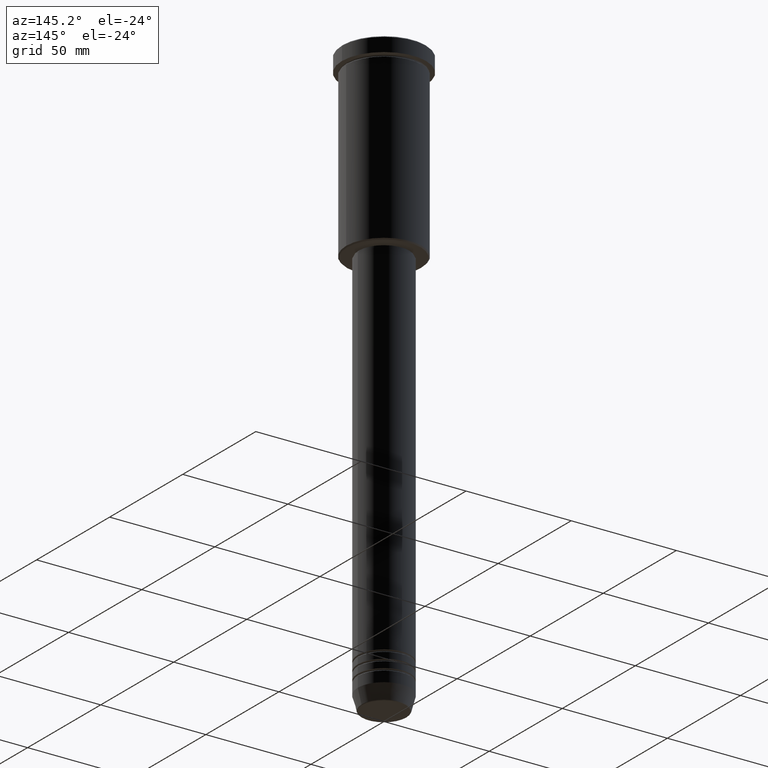
[diagram: clean part render]
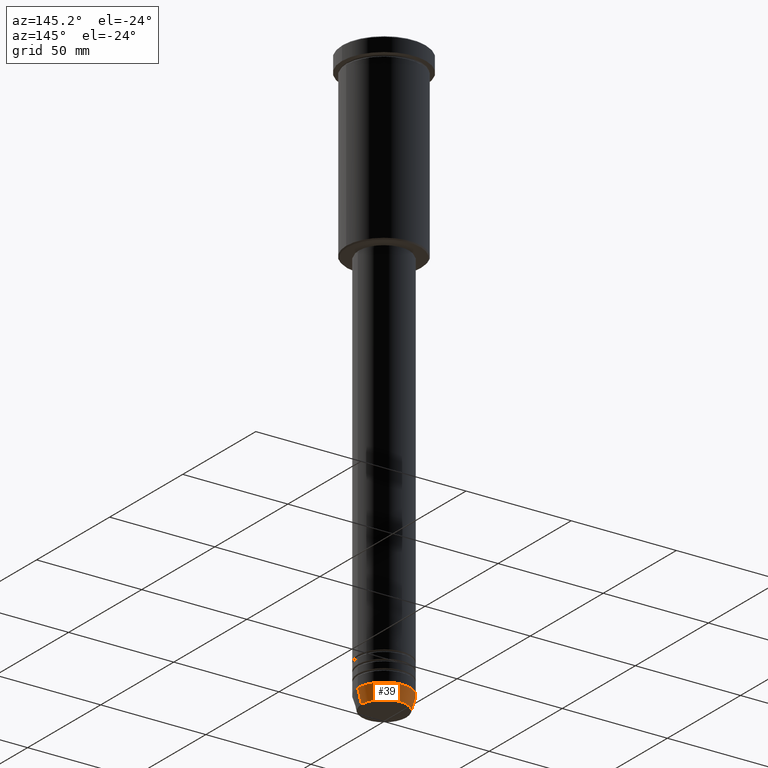
[diagram: same view with one face highlighted and labeled with its STEP entity id]
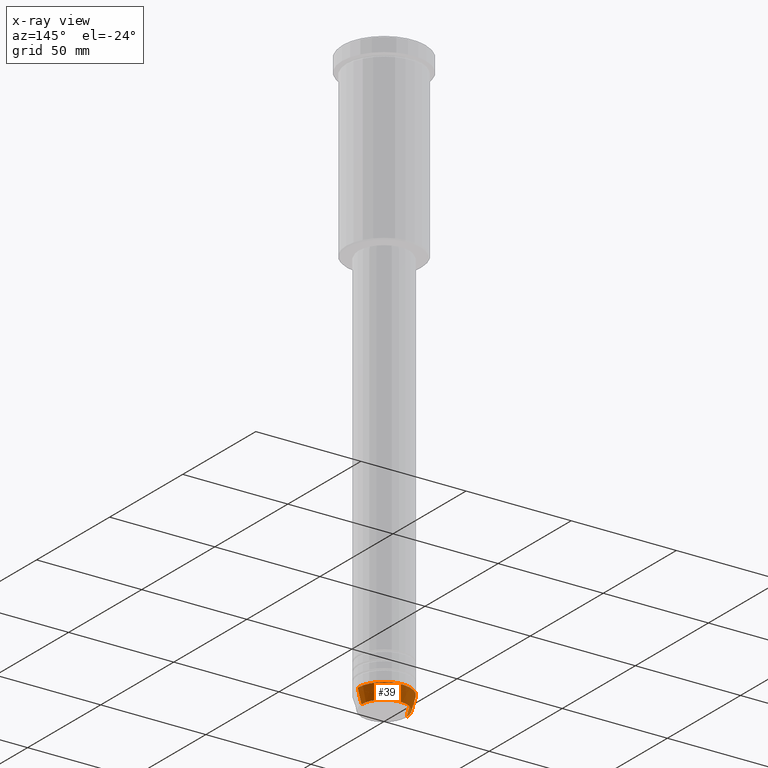
[diagram: x-ray of the same camera — body ghosted, the highlighted face saturated]
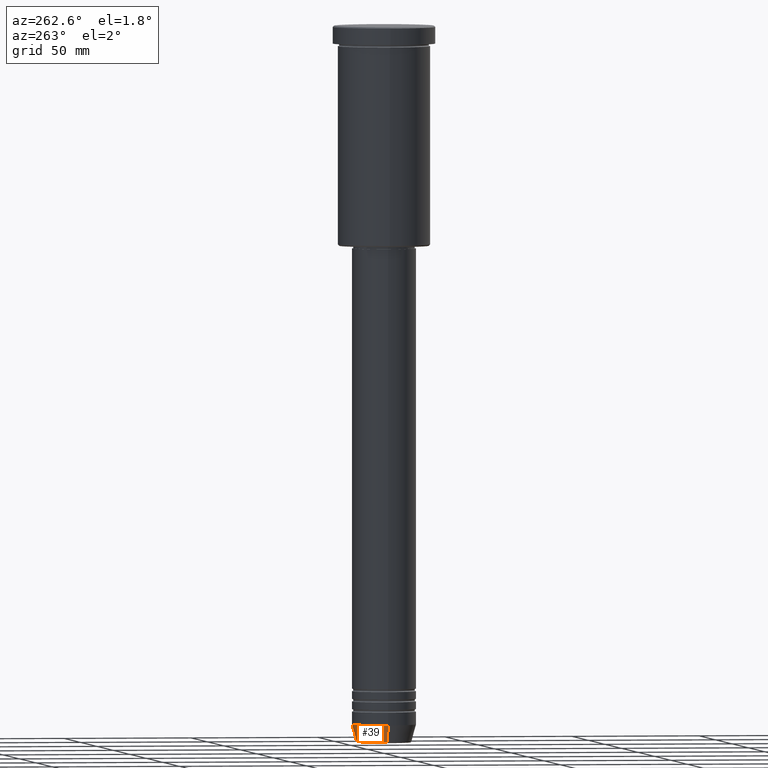
[diagram: same view with one face highlighted and labeled with its STEP entity id]
A machine part, auxiliary view. The second image highlights one B-rep face of the part: STEP entity #39.
The next image is the same camera in x-ray: the body ghosted, the highlighted face saturated — about 0% of this face is hidden behind the body in this view.
A second angle (auxiliary view) of the same face is appended — the face is thin or edge-on in the first view.
In plain terms, the highlighted conical surface has half-angle 15 deg.
Its self-contained STEP definition (entity closure, byte-faithful):
#39 = ADVANCED_FACE ( 'NONE', ( #968 ), #108, .T. ) ;
#104 = DIRECTION ( 'NONE',  ( -0.2588190451025213501, 3.169619151431772337E-17, 0.9659258262890680902 ) ) ;
#108 = CONICAL_SURFACE ( 'NONE', #618, 12.50000000000000000, 0.2617993877991500740 ) ;
#122 = LINE ( 'NONE', #929, #478 ) ;
#127 = VERTEX_POINT ( 'NONE', #904 ) ;
#134 = CARTESIAN_POINT ( 'NONE',  ( -10.72365507213719127, 1.422038742429750516E-15, -279.6294095225512706 ) ) ;
#138 = ORIENTED_EDGE ( 'NONE', *, *, #576, .T. ) ;
#176 = CARTESIAN_POINT ( 'NONE',  ( 0.000000000000000000, 0.000000000000000000, -273.0000000000000000 ) ) ;
#182 = ORIENTED_EDGE ( 'NONE', *, *, #751, .F. ) ;
#190 = DIRECTION ( 'NONE',  ( 1.000000000000000000, 0.000000000000000000, 0.000000000000000000 ) ) ;
#202 = VECTOR ( 'NONE', #837, 1000.000000000000000 ) ;
#275 = LINE ( 'NONE', #915, #202 ) ;
#315 = CARTESIAN_POINT ( 'NONE',  ( 12.50000000000000000, 0.000000000000000000, -273.0000000000000000 ) ) ;
#413 = ORIENTED_EDGE ( 'NONE', *, *, #983, .F. ) ;
#440 = AXIS2_PLACEMENT_3D ( 'NONE', #764, #840, #827 ) ;
#478 = VECTOR ( 'NONE', #104, 1000.000000000000000 ) ;
#509 = DIRECTION ( 'NONE',  ( -0.000000000000000000, -0.000000000000000000, 1.000000000000000000 ) ) ;
#514 = DIRECTION ( 'NONE',  ( 1.000000000000000000, 0.000000000000000000, 0.000000000000000000 ) ) ;
#526 = CARTESIAN_POINT ( 'NONE',  ( 0.000000000000000000, 0.000000000000000000, -273.0000000000000000 ) ) ;
#576 = EDGE_CURVE ( 'NONE', #630, #127, #122, .T. ) ;
#596 = EDGE_CURVE ( 'NONE', #600, #630, #1049, .T. ) ;
#600 = VERTEX_POINT ( 'NONE', #923 ) ;
#618 = AXIS2_PLACEMENT_3D ( 'NONE', #526, #509, #514 ) ;
#625 = VERTEX_POINT ( 'NONE', #315 ) ;
#630 = VERTEX_POINT ( 'NONE', #134 ) ;
#751 = EDGE_CURVE ( 'NONE', #600, #625, #275, .T. ) ;
#753 = DIRECTION ( 'NONE',  ( -0.000000000000000000, -0.000000000000000000, 1.000000000000000000 ) ) ;
#764 = CARTESIAN_POINT ( 'NONE',  ( 0.000000000000000000, 0.000000000000000000, -279.6294095225512706 ) ) ;
#827 = DIRECTION ( 'NONE',  ( 1.000000000000000000, 0.000000000000000000, 0.000000000000000000 ) ) ;
#837 = DIRECTION ( 'NONE',  ( 0.2588190451025213501, 0.000000000000000000, 0.9659258262890680902 ) ) ;
#840 = DIRECTION ( 'NONE',  ( -0.000000000000000000, -0.000000000000000000, 1.000000000000000000 ) ) ;
#904 = CARTESIAN_POINT ( 'NONE',  ( -12.50000000000000000, 1.530808498934191521E-15, -273.0000000000000000 ) ) ;
#915 = CARTESIAN_POINT ( 'NONE',  ( 12.50000000000000000, 0.000000000000000000, -273.0000000000000000 ) ) ;
#923 = CARTESIAN_POINT ( 'NONE',  ( 10.72365507213719127, 0.000000000000000000, -279.6294095225512706 ) ) ;
#929 = CARTESIAN_POINT ( 'NONE',  ( -12.50000000000000000, 1.530808498934191521E-15, -273.0000000000000000 ) ) ;
#940 = AXIS2_PLACEMENT_3D ( 'NONE', #176, #753, #190 ) ;
#960 = CIRCLE ( 'NONE', #940, 12.50000000000000000 ) ;
#963 = EDGE_LOOP ( 'NONE', ( #1157, #138, #413, #182 ) ) ;
#968 = FACE_OUTER_BOUND ( 'NONE', #963, .T. ) ;
#983 = EDGE_CURVE ( 'NONE', #625, #127, #960, .T. ) ;
#1049 = CIRCLE ( 'NONE', #440, 10.72365507213719127 ) ;
#1157 = ORIENTED_EDGE ( 'NONE', *, *, #596, .T. ) ;